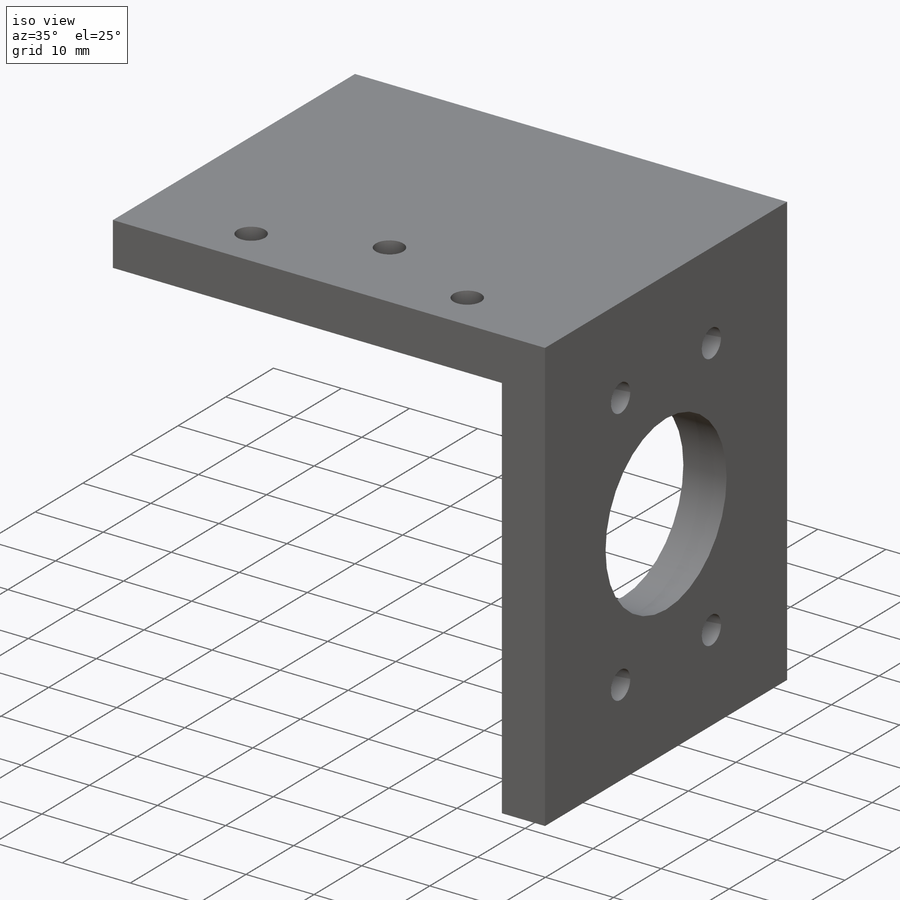
[diagram: iso view]
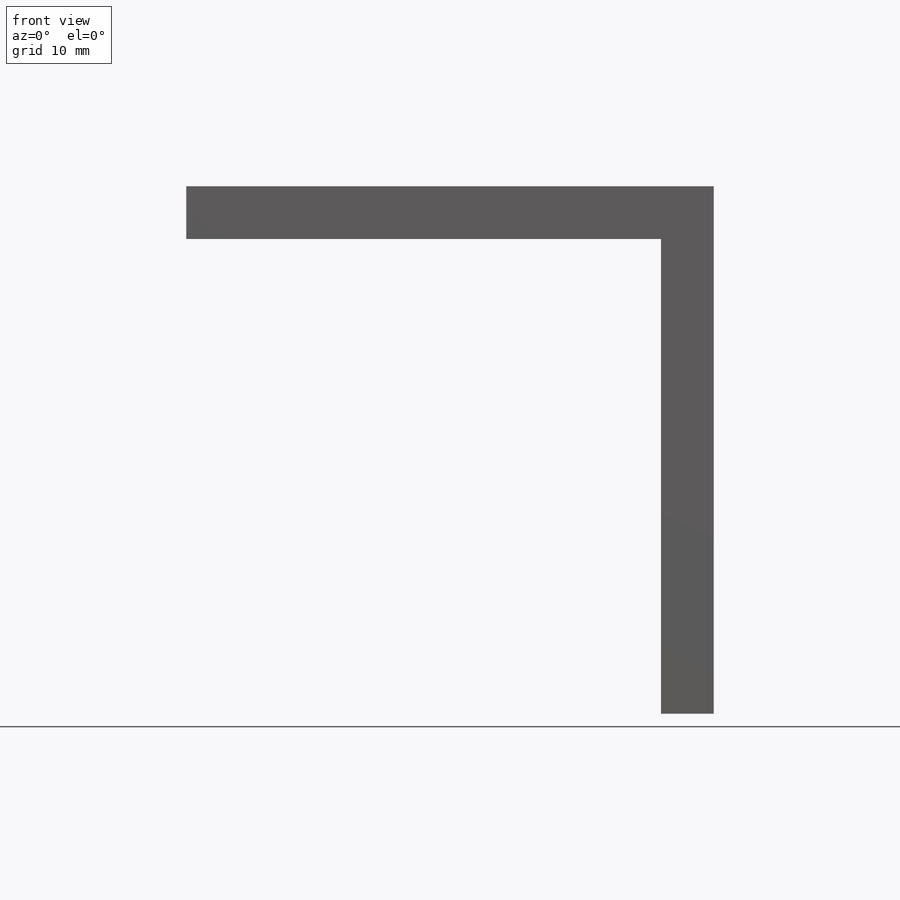
[diagram: front view]
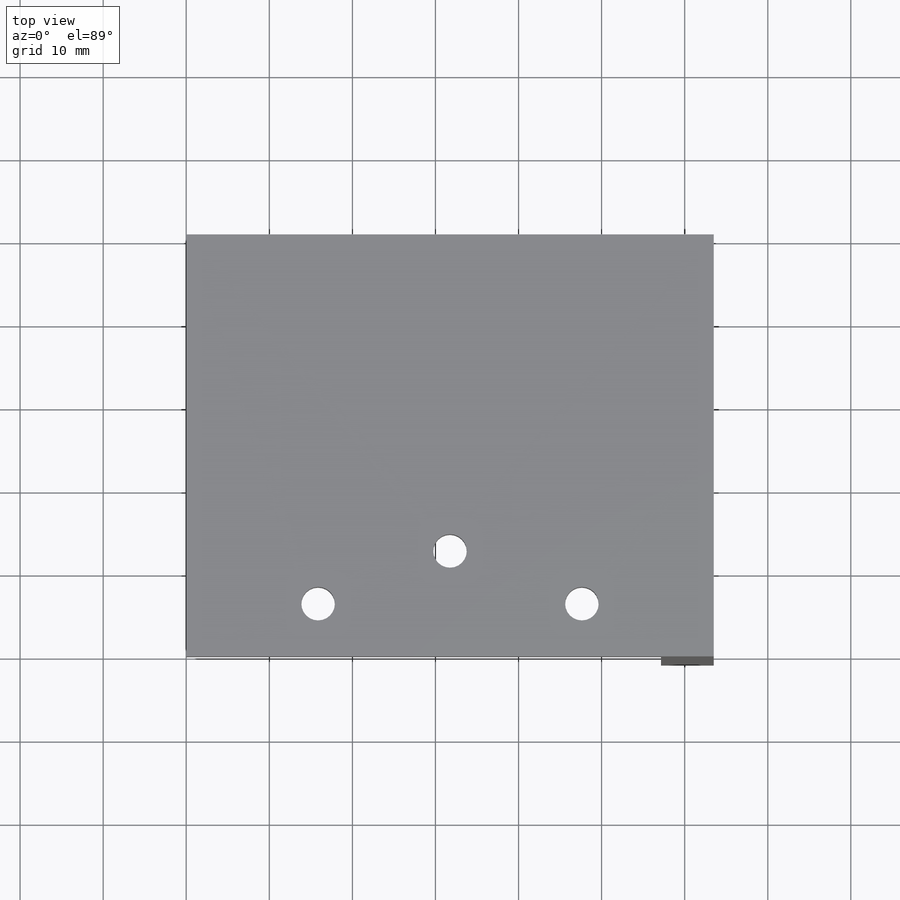
[diagram: top view]
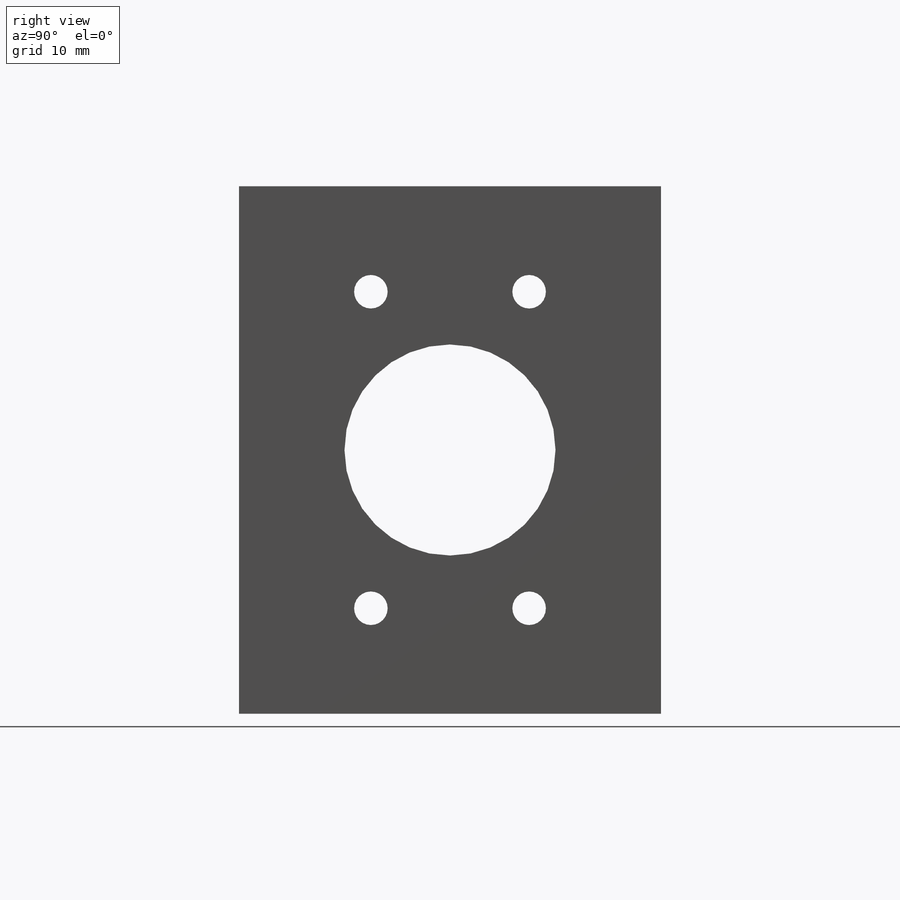
[diagram: right view]
SOLIDWORKS PART (.sldprt)
format: sldprt  version: not decoded by parser v0  size: 268,288 bytes
history: native  units: mm
features: sketch x9, thread x7, hole x2, material x1, extrude x1, cut_extrude x1 (+11 scaffold rows collapsed)
feature tree (32):
  scaffold x11  (default folders/planes/origin — collapsed)
  material  "Material <not specified>"
  sketch  "Sketch1"  dims[c1.D1=6.35mm c1.D2=6.35mm c2.D1=6.35mm c2.D2=6.35mm c2.D3=63.5mm c2.D4=63.5mm]
  extrude  "Boss-Extrude1"  Depth=50.8mm
  sketch  "Sketch2"  dims[D1=25.4mm D2=19.05mm D3=38.1mm D4=31.75mm D5=25.4mm]
  cut_extrude  "Cut-Extrude1"  [1 undecoded]
  sketch  "Sketch3"  dims[D1=19.05mm D2=38.1mm]
  hole  "#10-32 Tapped Hole1"  Diameter=4.0386mm Depth=6.35mm
  sketch  "Sketch5"
  sketch  "Sketch4"  dims[hole-wizard template sketch: 61 standard entries collapsed; hole parameters above]
  thread  "Hole Thread1"  Diameter=4.826mm  [1 undecoded]
  thread  "Hole Thread2"  Diameter=4.826mm  [1 undecoded]
  thread  "Hole Thread3"  Diameter=4.826mm  [1 undecoded]
  thread  "Hole Thread4"  Diameter=4.826mm  [1 undecoded]
  sketch  "Sketch6"  dims[D1=6.35mm D2=6.35mm D3=31.75mm]
  hole  "#10-32 Tapped Hole2"  Diameter=4.0386mm Depth=6.35mm
  sketch  "Sketch8"
  sketch  "Sketch7"  dims[hole-wizard template sketch: 61 standard entries collapsed; hole parameters above]
  thread  "Hole Thread5"  Diameter=4.826mm  [1 undecoded]
  thread  "Hole Thread6"  Diameter=4.826mm  [1 undecoded]
  thread  "Hole Thread7"  Diameter=4.826mm  [1 undecoded]
  sketch  "Sketch9"
decode coverage: 16 of 20 modeling features carry decoded parameters
note: ~ marks probable driven/reference dimensions
note: 8 parameter values undecoded
note: suppression state not decoded; provenance and decode notes live in map.json
